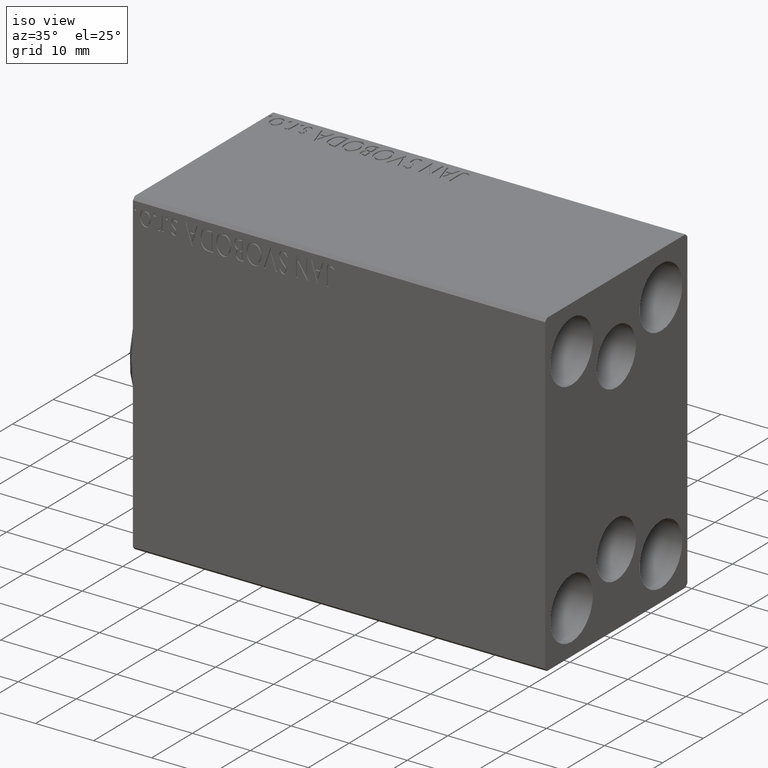
[diagram: clean part render]
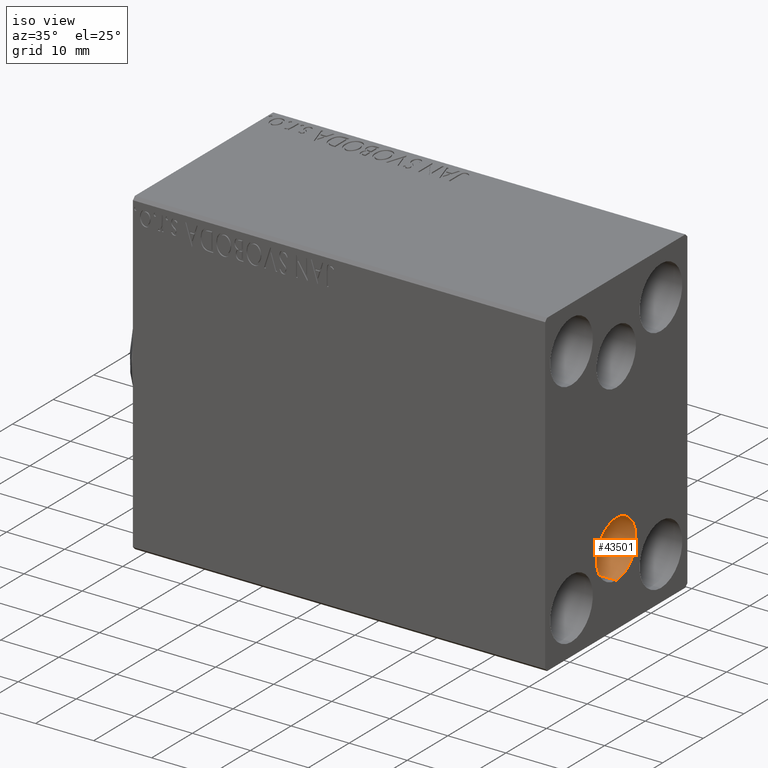
[diagram: same view with one face highlighted and labeled with its STEP entity id]
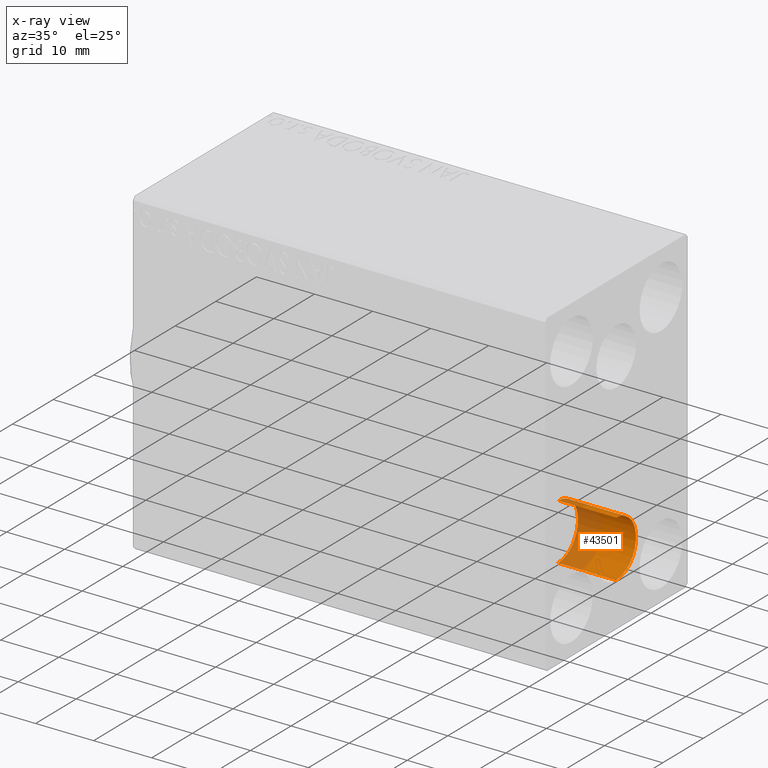
[diagram: x-ray of the same camera — body ghosted, the highlighted face saturated]
A machine part, iso view. The second image highlights one B-rep face of the part: STEP entity #43501.
The next image is the same camera in x-ray: the body ghosted, the highlighted face saturated — about 40% of this face is hidden behind the body in this view.
In plain terms, the highlighted cylindrical surface (edge-blend (fillet) strip) has radius 4.86 mm, axis along (1, 0, 0).
Its self-contained STEP definition (entity closure, byte-faithful):
#1725 = VECTOR ( 'NONE', #9726, 1000.000000000000000 ) ;
#2249 = DIRECTION ( 'NONE',  ( 1.000000000000000000, -0.000000000000000000, -0.000000000000000000 ) ) ;
#3601 = DIRECTION ( 'NONE',  ( 0.000000000000000000, 0.000000000000000000, 1.000000000000000000 ) ) ;
#4598 = DIRECTION ( 'NONE',  ( 1.000000000000000000, -0.000000000000000000, -0.000000000000000000 ) ) ;
#4910 = EDGE_CURVE ( 'NONE', #38464, #39010, #35345, .T. ) ;
#8232 = ORIENTED_EDGE ( 'NONE', *, *, #23114, .F. ) ;
#8789 = CARTESIAN_POINT ( 'NONE',  ( 60.99999999999999289, -1.734723475976807094E-15, -15.00000000000000000 ) ) ;
#9599 = VERTEX_POINT ( 'NONE', #43046 ) ;
#9726 = DIRECTION ( 'NONE',  ( 1.000000000000000000, -0.000000000000000000, -0.000000000000000000 ) ) ;
#14765 = AXIS2_PLACEMENT_3D ( 'NONE', #34010, #37336, #3601 ) ;
#15012 = FACE_OUTER_BOUND ( 'NONE', #22229, .T. ) ;
#18784 = DIRECTION ( 'NONE',  ( 0.000000000000000000, 0.000000000000000000, -1.000000000000000000 ) ) ;
#19284 = CARTESIAN_POINT ( 'NONE',  ( 60.99999999999999289, -1.734723475976807094E-15, -19.85999999999999943 ) ) ;
#20943 = CARTESIAN_POINT ( 'NONE',  ( 60.99999999999999289, -1.734723475976807094E-15, -19.85999999999999943 ) ) ;
#22229 = EDGE_LOOP ( 'NONE', ( #8232, #40470, #32266, #24685 ) ) ;
#23114 = EDGE_CURVE ( 'NONE', #9599, #39010, #42857, .T. ) ;
#24685 = ORIENTED_EDGE ( 'NONE', *, *, #4910, .T. ) ;
#25292 = DIRECTION ( 'NONE',  ( 0.000000000000000000, 0.000000000000000000, 1.000000000000000000 ) ) ;
#26568 = CIRCLE ( 'NONE', #36487, 4.859999999999999432 ) ;
#28637 = DIRECTION ( 'NONE',  ( 1.000000000000000000, 0.000000000000000000, -0.000000000000000000 ) ) ;
#32005 = CARTESIAN_POINT ( 'NONE',  ( 60.99999999999999289, -1.139545131591193620E-15, -10.14000000000000057 ) ) ;
#32266 = ORIENTED_EDGE ( 'NONE', *, *, #37760, .T. ) ;
#34010 = CARTESIAN_POINT ( 'NONE',  ( 71.00000000000000000, -1.734723475976807094E-15, -15.00000000000000000 ) ) ;
#35222 = CYLINDRICAL_SURFACE ( 'NONE', #42963, 4.859999999999999432 ) ;
#35345 = CIRCLE ( 'NONE', #14765, 4.859999999999999432 ) ;
#36487 = AXIS2_PLACEMENT_3D ( 'NONE', #41298, #28637, #25292 ) ;
#37336 = DIRECTION ( 'NONE',  ( 1.000000000000000000, 0.000000000000000000, -0.000000000000000000 ) ) ;
#37524 = CARTESIAN_POINT ( 'NONE',  ( 71.00000000000000000, -1.139545131591193817E-15, -10.14000000000000057 ) ) ;
#37760 = EDGE_CURVE ( 'NONE', #39939, #38464, #42804, .T. ) ;
#38464 = VERTEX_POINT ( 'NONE', #38662 ) ;
#38662 = CARTESIAN_POINT ( 'NONE',  ( 71.00000000000000000, -1.734723475976807094E-15, -19.85999999999999943 ) ) ;
#39010 = VERTEX_POINT ( 'NONE', #37524 ) ;
#39124 = EDGE_CURVE ( 'NONE', #39939, #9599, #26568, .T. ) ;
#39939 = VERTEX_POINT ( 'NONE', #20943 ) ;
#40470 = ORIENTED_EDGE ( 'NONE', *, *, #39124, .F. ) ;
#41298 = CARTESIAN_POINT ( 'NONE',  ( 60.99999999999999289, -1.734723475976807094E-15, -15.00000000000000000 ) ) ;
#42804 = LINE ( 'NONE', #19284, #1725 ) ;
#42857 = LINE ( 'NONE', #32005, #43263 ) ;
#42963 = AXIS2_PLACEMENT_3D ( 'NONE', #8789, #4598, #18784 ) ;
#43046 = CARTESIAN_POINT ( 'NONE',  ( 60.99999999999999289, -1.139545131591193817E-15, -10.14000000000000057 ) ) ;
#43263 = VECTOR ( 'NONE', #2249, 1000.000000000000000 ) ;
#43501 = ADVANCED_FACE ( 'NONE', ( #15012 ), #35222, .F. ) ;